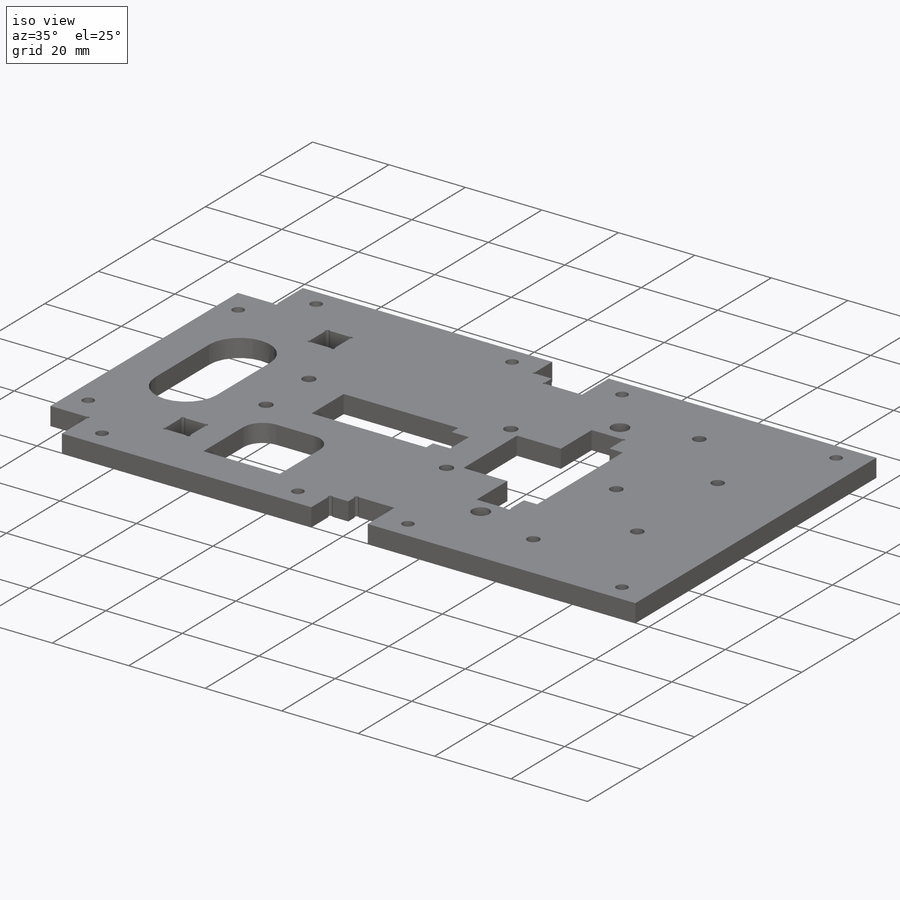
[diagram: iso view]
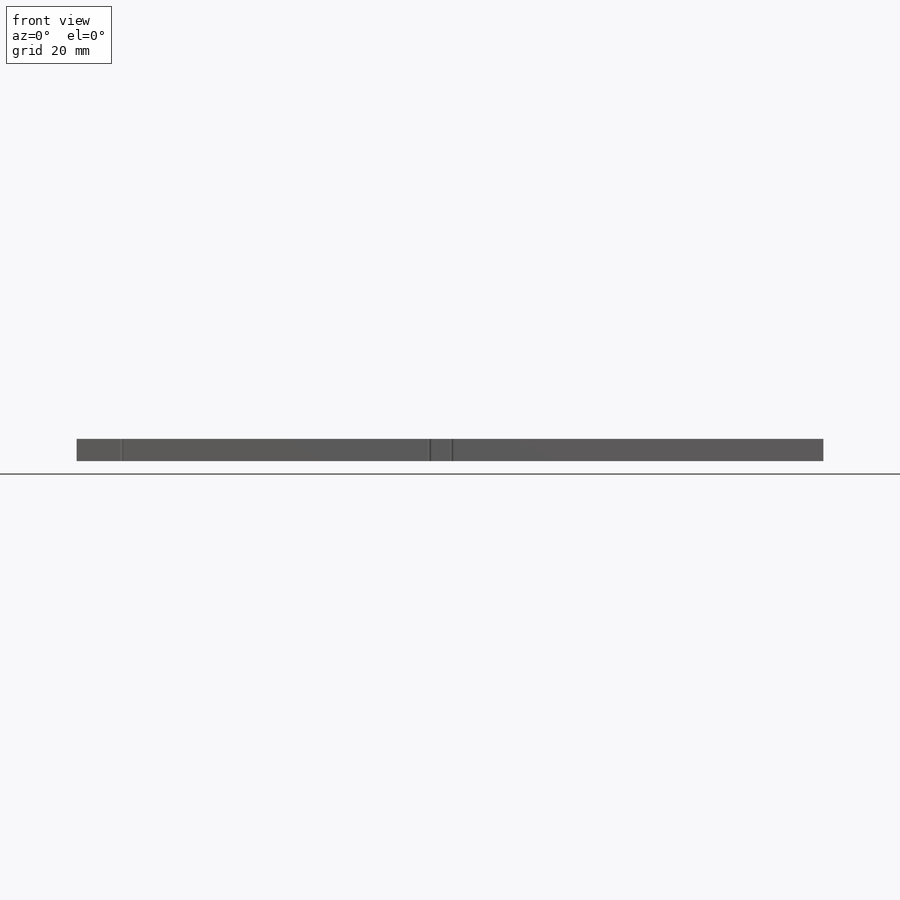
[diagram: front view]
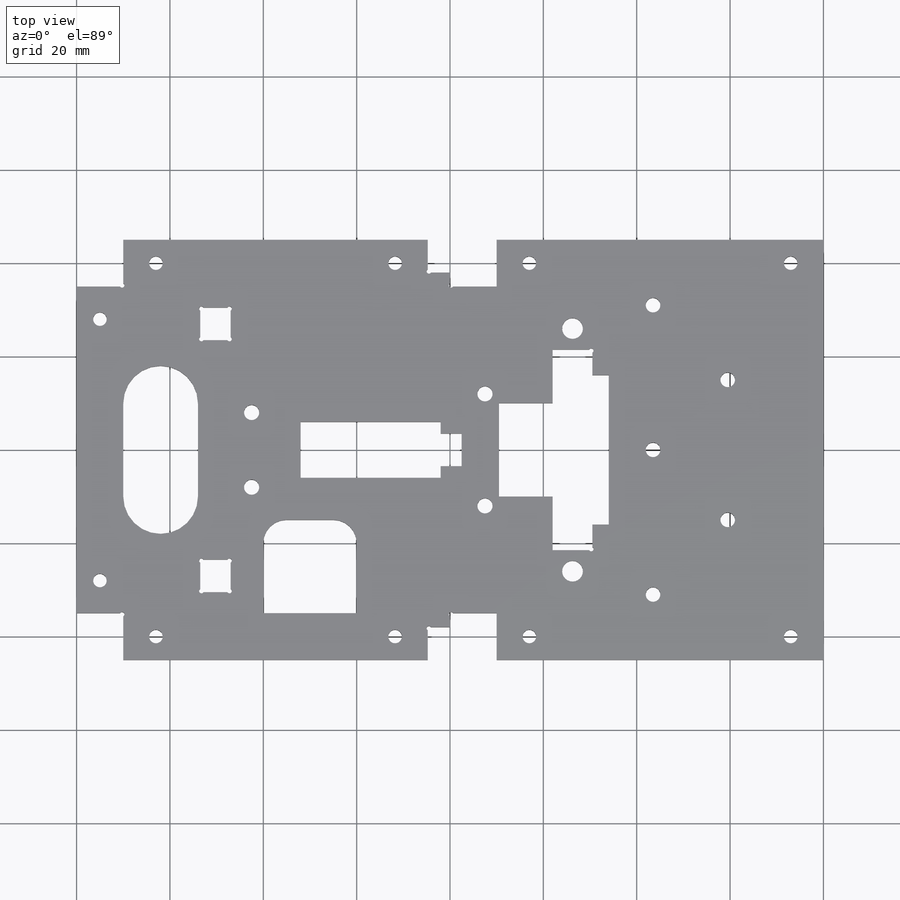
[diagram: top view]
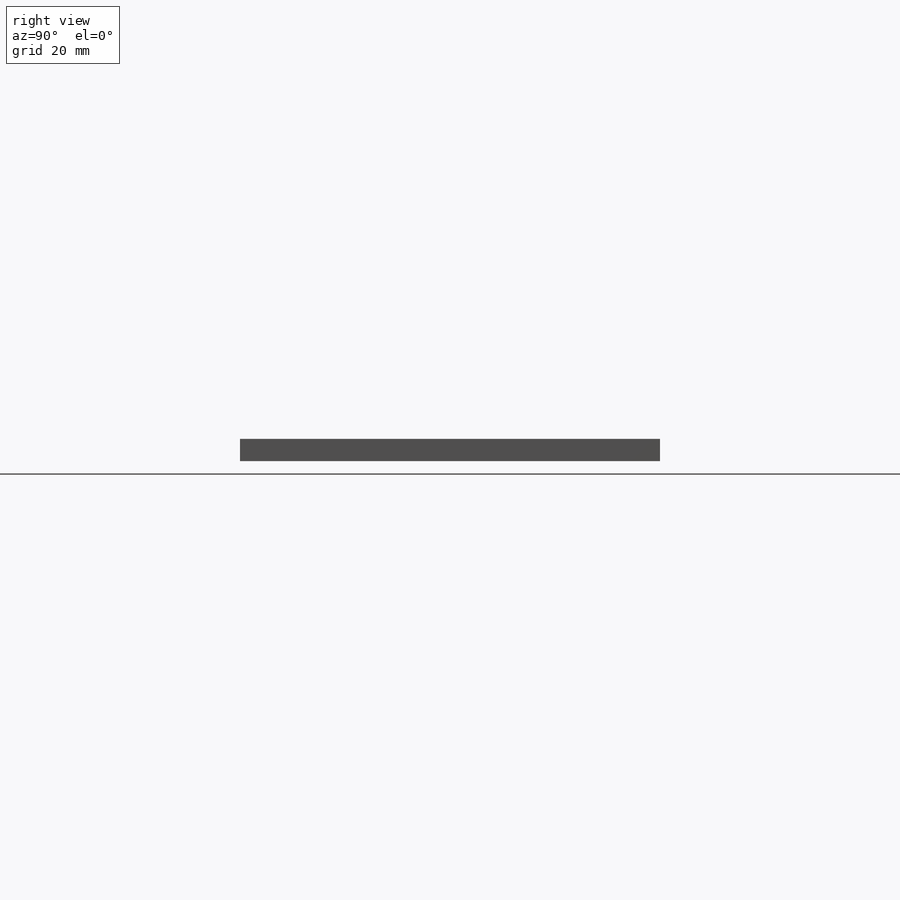
[diagram: right view]
SOLIDWORKS PART (.sldprt)
format: sldprt  version: not decoded by parser v0  size: 507,392 bytes
history: native  units: mm
features: sketch x8, cut_extrude x7, material x1, extrude x1, mirror x1, plane x1, fillet x1 (+16 scaffold rows collapsed)
feature tree (36):
  scaffold x16  (default folders/planes/origin — collapsed)
  material  "Material <not specified>"
  sketch  "Sketch1"  dims[c1.D1=40.0mm c1.D2=10.0mm c1.D3=4.7625mm c2.D2=10.0mm c2.D3=4.7625mm c2.D4=35.0mm c2.D5=3.0mm c2.D1=10.0mm c2.D6=70.0mm c2.D7=80.0mm]
  extrude  "Boss-Extrude1"  Depth=4.7625mm
  mirror  "Mirror1"
  plane  "Plane1"  Offset=27mm
  sketch  "Sketch2"  dims[c1.D3=3.25mm c1.D1=50.0mm c1.D2=26.0mm c1.D4=12.0mm c1.D5=7.0mm c1.D6=5.0mm c1.D7=5.0mm c1.D8=30.0mm c1.D9=7.5mm c2.D6=23.0mm c2.D10=50.0mm c2.D2=24.0mm c3.D10=16.0mm c3.D11=50.0mm c3.D12=15.0mm c3.D13=3.0mm c3.D14=19.0mm c3.D15=12.5mm c3.D16=15.0mm c3.D6=2.0mm c4.D16=20.0mm c4.D17=40.0mm c4.D18=20.0mm]
  cut_extrude  "Cut-Extrude1"  [1 undecoded]
  sketch  "Sketch3"  dims[c1.D1=7.0mm c1.D2=47.0mm c1.D3=4.7625mm c1.D4=47.0mm c2.D3=53.5mm]
  cut_extrude  "Cut-Extrude2"  [1 undecoded]
  sketch  "Sketch4"  dims[c1.D4=4.45mm c1.D1=5.0mm c1.D2=3.5mm c1.D3=43.0mm c1.D5=48.0mm c1.D6=43.0mm c2.D6=45.0deg c2.D7=2.0mm c2.D8=32.0mm c2.D9=7.0mm c2.D10=5.0mm c2.D11=10.0mm c3.D8=12.0mm c3.D9=32.0mm c4.D8=7.0mm c4.D1=0.75mm c4.D5=8.5mm c4.D6=52.0mm c4.D10=20.0mm]
  cut_extrude  "Cut-Extrude3"  [1 undecoded]
  sketch  "Sketch5"  dims[D1=3.125mm D2=8.0mm D3=8.0mm D4=15.0mm D5=31.0mm D6=24.5mm]
  cut_extrude  "Cut-Extrude4"  [1 undecoded]
  sketch  "Sketch6"  dims[D1=16.0mm D2=62.0mm D3=~21.174006mm D4=20.0mm]
  cut_extrude  "Cut-Extrude5"  [1 undecoded]
  sketch  "Sketch7"  dims[D1=1.0mm D2=0.25mm]
  cut_extrude  "Cut-Extrude6"  [1 undecoded]
  sketch  "Sketch8"  dims[D1=2.9mm D2=7.0mm D3=75.0mm D4=40.0mm D5=7.0mm D6=7.0mm D7=7.0mm D8=7.0mm]
  cut_extrude  "Cut-Extrude7"  [1 undecoded]
  fillet  "Fillet1"  Radius=5mm
decode coverage: 10 of 18 modeling features carry decoded parameters
note: ~ marks probable driven/reference dimensions
note: 7 parameter values undecoded
summary: no parameter record found for 7 features
note: suppression state not decoded; provenance and decode notes live in map.json
